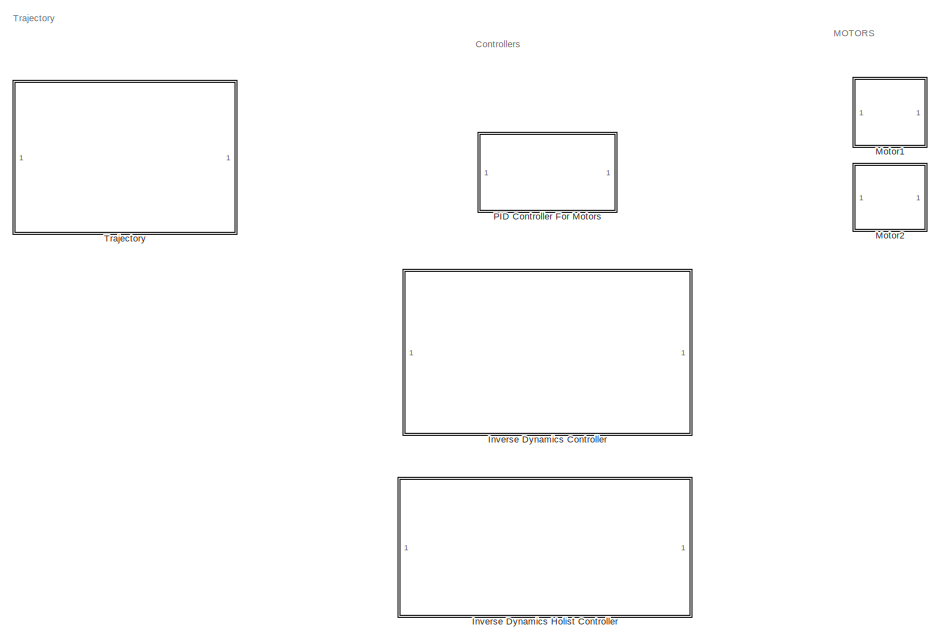
[diagram: root canvas - part 1/2, left side, full height]
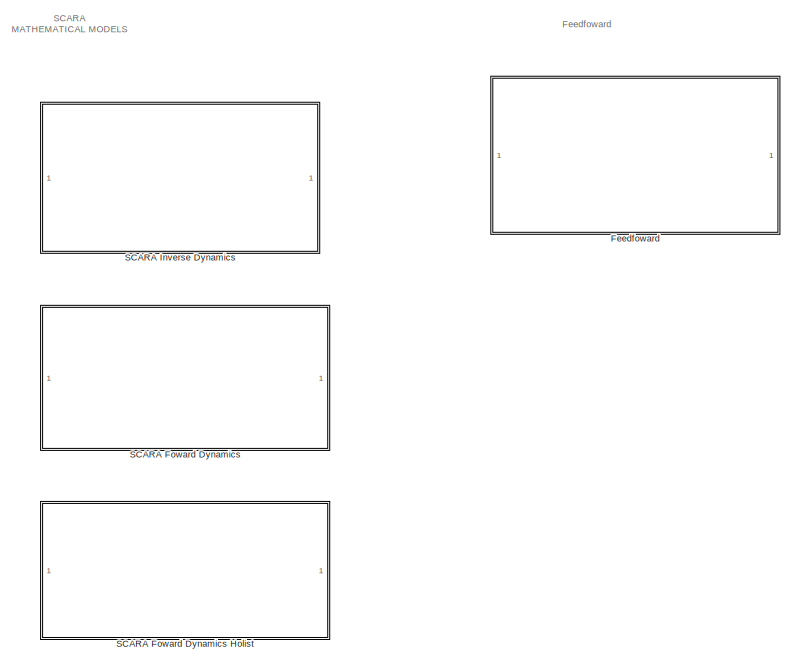
[diagram: root canvas - part 2/2, right side, full height]
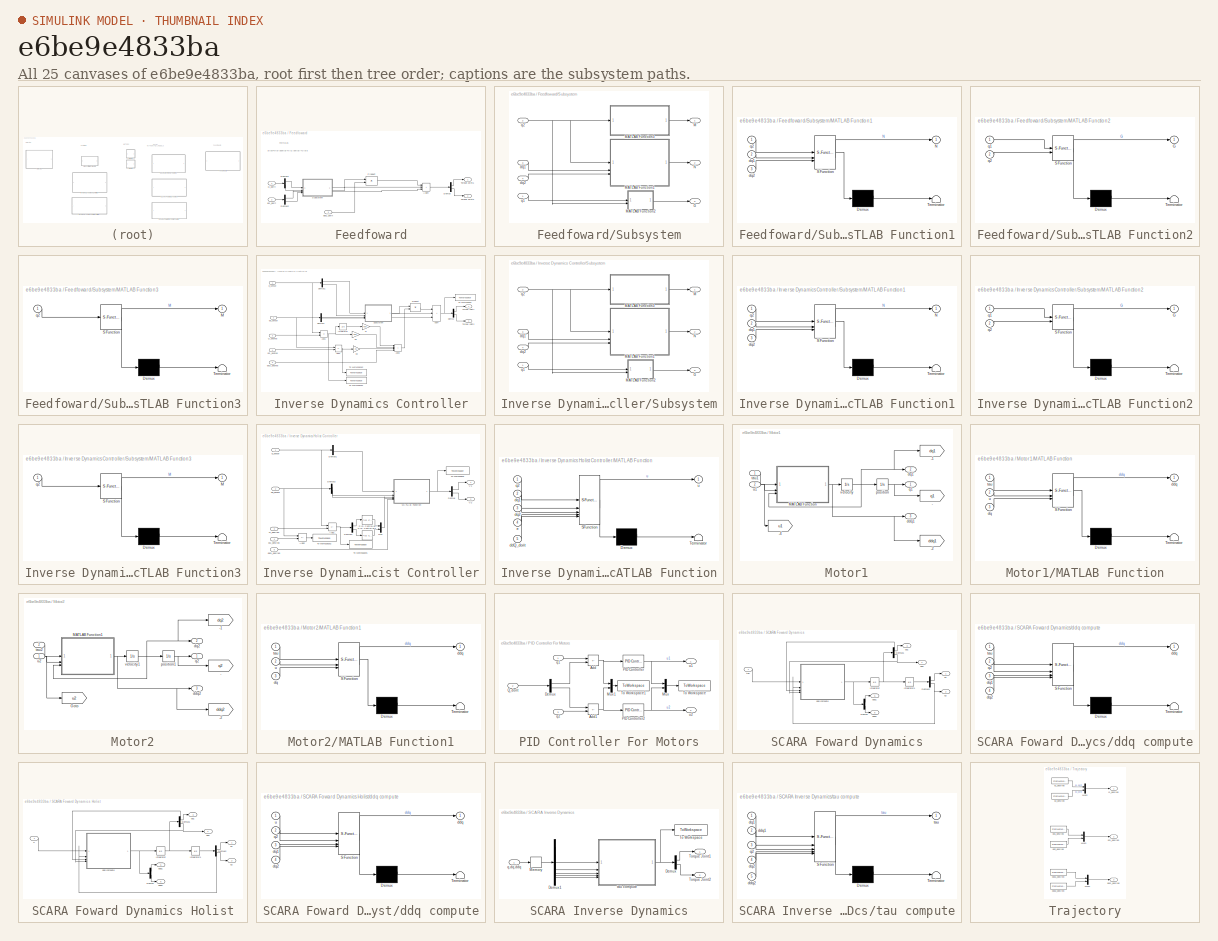
[diagram: thumbnail index - all 25 canvases of the model, root first then tree order]
MODEL slx_e6be9e4833ba
KIND library
CONFIG AbsTol = auto
CONFIG EnableMultiTasking = off
CONFIG FixedStep = auto
CONFIG MaxStep = auto
CONFIG MinStep = auto
CONFIG RelTol = 1e-3
CONFIG SampleTimeConstraint = Unconstrained
CONFIG SolverName = VariableStepAuto
CONFIG StartTime = 0.0
CONFIG StopTime = 10.0
BLOCK [SubSystem] Feedfoward
BLOCK [Sum] Feedfoward/Add4
  IconShape = rectangular
  Inputs = +++
BLOCK [Demux] Feedfoward/Demux
  Outputs = 2
BLOCK [Demux] Feedfoward/Demux1
  Outputs = 2
BLOCK [Demux] Feedfoward/Demux2
  Outputs = 2
BLOCK [Product] Feedfoward/Product
  Multiplication = Matrix(*)
BLOCK [Inport] Feedfoward/Q_dorit
BLOCK [SubSystem] Feedfoward/Subsystem
BLOCK [Outport] Feedfoward/Subsystem/G
  Port = 3
BLOCK [Outport] Feedfoward/Subsystem/M
BLOCK [SubSystem] Feedfoward/Subsystem/MATLAB Function1
  ErrorFcn = Stateflow.Translate.translate
  PermitHierarchicalResolution = ExplicitOnly
  SFBlockType = MATLAB Function
  TreatAsAtomicUnit = on
BLOCK [Demux] Feedfoward/Subsystem/MATLAB Function1/ Demux 
  Outputs = 1
BLOCK [S-Function] Feedfoward/Subsystem/MATLAB Function1/ SFunction 
  EnableBusSupport = off
  FunctionName = sf_sfun
  PortCounts = [3 2]
  SFcnIsStateOwnerBlock = off
  SFunctionDeploymentMode = off
  Tag = Stateflow S-Function 1
BLOCK [Terminator] Feedfoward/Subsystem/MATLAB Function1/ Terminator 
BLOCK [Outport] Feedfoward/Subsystem/MATLAB Function1/N
BLOCK [Inport] Feedfoward/Subsystem/MATLAB Function1/dq1
  Port = 2
BLOCK [Inport] Feedfoward/Subsystem/MATLAB Function1/dq2
  Port = 3
BLOCK [Inport] Feedfoward/Subsystem/MATLAB Function1/q2
BLOCK [SubSystem] Feedfoward/Subsystem/MATLAB Function2
  ErrorFcn = Stateflow.Translate.translate
  PermitHierarchicalResolution = ExplicitOnly
  SFBlockType = MATLAB Function
  TreatAsAtomicUnit = on
BLOCK [Demux] Feedfoward/Subsystem/MATLAB Function2/ Demux 
  Outputs = 1
BLOCK [S-Function] Feedfoward/Subsystem/MATLAB Function2/ SFunction 
  EnableBusSupport = off
  FunctionName = sf_sfun
  PortCounts = [2 2]
  SFcnIsStateOwnerBlock = off
  SFunctionDeploymentMode = off
  Tag = Stateflow S-Function 2
BLOCK [Terminator] Feedfoward/Subsystem/MATLAB Function2/ Terminator 
BLOCK [Outport] Feedfoward/Subsystem/MATLAB Function2/G
BLOCK [Inport] Feedfoward/Subsystem/MATLAB Function2/q1
BLOCK [Inport] Feedfoward/Subsystem/MATLAB Function2/q2
  Port = 2
BLOCK [SubSystem] Feedfoward/Subsystem/MATLAB Function3
  ErrorFcn = Stateflow.Translate.translate
  PermitHierarchicalResolution = ExplicitOnly
  SFBlockType = MATLAB Function
  TreatAsAtomicUnit = on
BLOCK [Demux] Feedfoward/Subsystem/MATLAB Function3/ Demux 
  Outputs = 1
BLOCK [S-Function] Feedfoward/Subsystem/MATLAB Function3/ SFunction 
  EnableBusSupport = off
  FunctionName = sf_sfun
  PortCounts = [1 2]
  SFcnIsStateOwnerBlock = off
  SFunctionDeploymentMode = off
  Tag = Stateflow S-Function 6
BLOCK [Terminator] Feedfoward/Subsystem/MATLAB Function3/ Terminator 
BLOCK [Outport] Feedfoward/Subsystem/MATLAB Function3/M
BLOCK [Inport] Feedfoward/Subsystem/MATLAB Function3/q2
BLOCK [Outport] Feedfoward/Subsystem/N
  Port = 2
BLOCK [Inport] Feedfoward/Subsystem/dq1
  Port = 3
BLOCK [Inport] Feedfoward/Subsystem/dq2
  Port = 4
BLOCK [Inport] Feedfoward/Subsystem/q1
BLOCK [Inport] Feedfoward/Subsystem/q2
  Port = 2
BLOCK [Outport] Feedfoward/Torque Joint1
BLOCK [Outport] Feedfoward/Torque Joint2
  Port = 2
BLOCK [Inport] Feedfoward/dQ_dorit
  Port = 2
BLOCK [Inport] Feedfoward/ddQ_dorit
  Port = 3
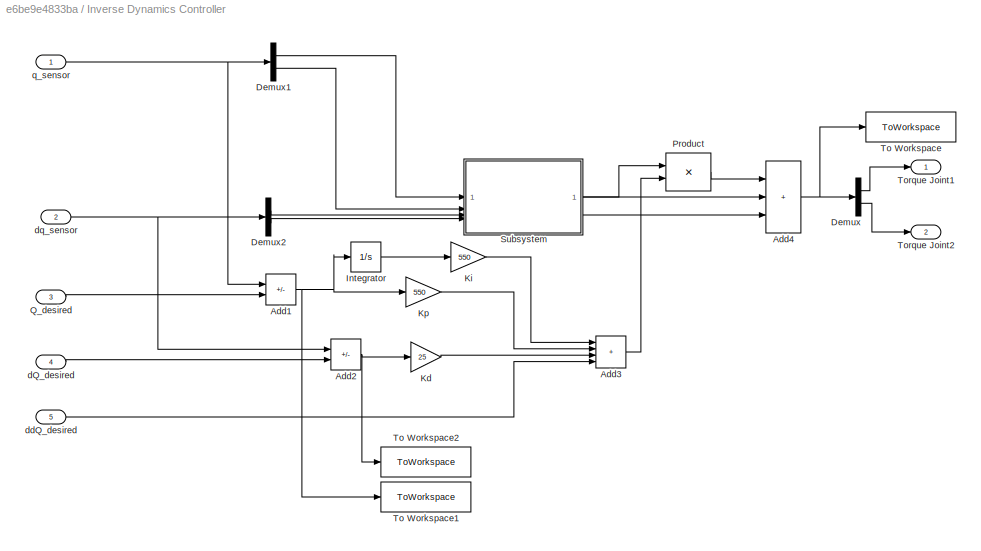
BLOCK [SubSystem] Inverse Dynamics Controller
BLOCK [Sum] Inverse Dynamics Controller/Add1
  IconShape = rectangular
  Inputs = -+
BLOCK [Sum] Inverse Dynamics Controller/Add2
  IconShape = rectangular
  Inputs = -+
BLOCK [Sum] Inverse Dynamics Controller/Add3
  IconShape = rectangular
  Inputs = ++++
BLOCK [Sum] Inverse Dynamics Controller/Add4
  IconShape = rectangular
  Inputs = +++
BLOCK [Demux] Inverse Dynamics Controller/Demux
  Outputs = 2
BLOCK [Demux] Inverse Dynamics Controller/Demux1
  Outputs = 2
BLOCK [Demux] Inverse Dynamics Controller/Demux2
  Outputs = 2
BLOCK [Integrator] Inverse Dynamics Controller/Integrator
BLOCK [Gain] Inverse Dynamics Controller/Kd
  Gain = 25
BLOCK [Gain] Inverse Dynamics Controller/Ki
  Gain = 550
BLOCK [Gain] Inverse Dynamics Controller/Kp
  Gain = 550
BLOCK [Product] Inverse Dynamics Controller/Product
  Multiplication = Matrix(*)
BLOCK [Inport] Inverse Dynamics Controller/Q_desired
  Port = 3
BLOCK [SubSystem] Inverse Dynamics Controller/Subsystem
BLOCK [Outport] Inverse Dynamics Controller/Subsystem/G
  Port = 3
BLOCK [Outport] Inverse Dynamics Controller/Subsystem/M
BLOCK [SubSystem] Inverse Dynamics Controller/Subsystem/MATLAB Function1
  ErrorFcn = Stateflow.Translate.translate
  PermitHierarchicalResolution = ExplicitOnly
  SFBlockType = MATLAB Function
  TreatAsAtomicUnit = on
BLOCK [Demux] Inverse Dynamics Controller/Subsystem/MATLAB Function1/ Demux 
  Outputs = 1
BLOCK [S-Function] Inverse Dynamics Controller/Subsystem/MATLAB Function1/ SFunction 
  EnableBusSupport = off
  FunctionName = sf_sfun
  PortCounts = [3 2]
  SFcnIsStateOwnerBlock = off
  SFunctionDeploymentMode = off
  Tag = Stateflow S-Function 3
BLOCK [Terminator] Inverse Dynamics Controller/Subsystem/MATLAB Function1/ Terminator 
BLOCK [Outport] Inverse Dynamics Controller/Subsystem/MATLAB Function1/N
BLOCK [Inport] Inverse Dynamics Controller/Subsystem/MATLAB Function1/dq1
  Port = 2
BLOCK [Inport] Inverse Dynamics Controller/Subsystem/MATLAB Function1/dq2
  Port = 3
BLOCK [Inport] Inverse Dynamics Controller/Subsystem/MATLAB Function1/q2
BLOCK [SubSystem] Inverse Dynamics Controller/Subsystem/MATLAB Function2
  ErrorFcn = Stateflow.Translate.translate
  PermitHierarchicalResolution = ExplicitOnly
  SFBlockType = MATLAB Function
  TreatAsAtomicUnit = on
BLOCK [Demux] Inverse Dynamics Controller/Subsystem/MATLAB Function2/ Demux 
  Outputs = 1
BLOCK [S-Function] Inverse Dynamics Controller/Subsystem/MATLAB Function2/ SFunction 
  EnableBusSupport = off
  FunctionName = sf_sfun
  PortCounts = [2 2]
  SFcnIsStateOwnerBlock = off
  SFunctionDeploymentMode = off
  Tag = Stateflow S-Function 4
BLOCK [Terminator] Inverse Dynamics Controller/Subsystem/MATLAB Function2/ Terminator 
BLOCK [Outport] Inverse Dynamics Controller/Subsystem/MATLAB Function2/G
BLOCK [Inport] Inverse Dynamics Controller/Subsystem/MATLAB Function2/q1
BLOCK [Inport] Inverse Dynamics Controller/Subsystem/MATLAB Function2/q2
  Port = 2
BLOCK [SubSystem] Inverse Dynamics Controller/Subsystem/MATLAB Function3
  ErrorFcn = Stateflow.Translate.translate
  PermitHierarchicalResolution = ExplicitOnly
  SFBlockType = MATLAB Function
  TreatAsAtomicUnit = on
BLOCK [Demux] Inverse Dynamics Controller/Subsystem/MATLAB Function3/ Demux 
  Outputs = 1
BLOCK [S-Function] Inverse Dynamics Controller/Subsystem/MATLAB Function3/ SFunction 
  EnableBusSupport = off
  FunctionName = sf_sfun
  PortCounts = [1 2]
  SFcnIsStateOwnerBlock = off
  SFunctionDeploymentMode = off
  Tag = Stateflow S-Function 5
BLOCK [Terminator] Inverse Dynamics Controller/Subsystem/MATLAB Function3/ Terminator 
BLOCK [Outport] Inverse Dynamics Controller/Subsystem/MATLAB Function3/M
BLOCK [Inport] Inverse Dynamics Controller/Subsystem/MATLAB Function3/q2
BLOCK [Outport] Inverse Dynamics Controller/Subsystem/N
  Port = 2
BLOCK [Inport] Inverse Dynamics Controller/Subsystem/dq1
  Port = 3
BLOCK [Inport] Inverse Dynamics Controller/Subsystem/dq2
  Port = 4
BLOCK [Inport] Inverse Dynamics Controller/Subsystem/q1
BLOCK [Inport] Inverse Dynamics Controller/Subsystem/q2
  Port = 2
BLOCK [ToWorkspace] Inverse Dynamics Controller/To Workspace
  FixptAsFi = on
  MaxDataPoints = inf
  SampleTime = -1
  SaveFormat = Timeseries
  VariableName = torque
BLOCK [ToWorkspace] Inverse Dynamics Controller/To Workspace1
  FixptAsFi = on
  MaxDataPoints = inf
  SampleTime = -1
  SaveFormat = Timeseries
  VariableName = errors_Q
BLOCK [ToWorkspace] Inverse Dynamics Controller/To Workspace2
  FixptAsFi = on
  MaxDataPoints = inf
  SampleTime = -1
  SaveFormat = Timeseries
  VariableName = errors_dQ
BLOCK [Outport] Inverse Dynamics Controller/Torque Joint1
BLOCK [Outport] Inverse Dynamics Controller/Torque Joint2
  Port = 2
BLOCK [Inport] Inverse Dynamics Controller/dQ_desired
  Port = 4
BLOCK [Inport] Inverse Dynamics Controller/ddQ_desired
  Port = 5
BLOCK [Inport] Inverse Dynamics Controller/dq_sensor
  Port = 2
BLOCK [Inport] Inverse Dynamics Controller/q_sensor
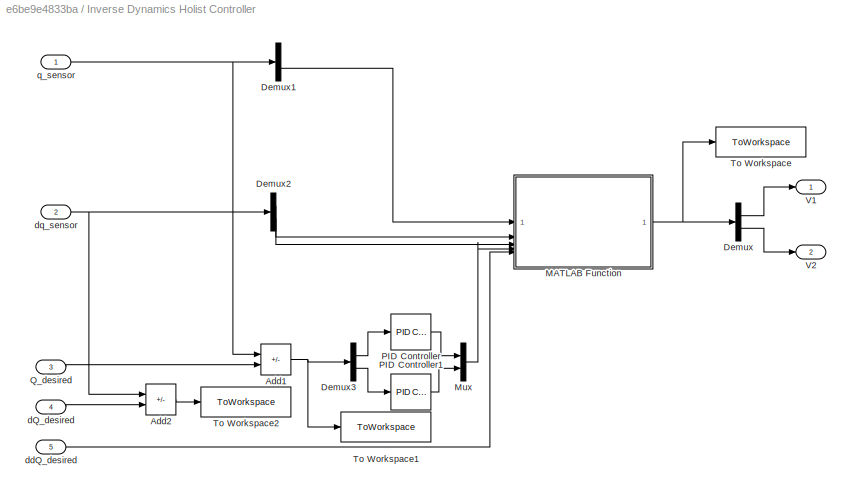
BLOCK [SubSystem] Inverse Dynamics Holist Controller
BLOCK [Sum] Inverse Dynamics Holist Controller/Add1
  IconShape = rectangular
  Inputs = -+
BLOCK [Sum] Inverse Dynamics Holist Controller/Add2
  IconShape = rectangular
  Inputs = -+
BLOCK [Demux] Inverse Dynamics Holist Controller/Demux
  Outputs = 2
BLOCK [Demux] Inverse Dynamics Holist Controller/Demux1
  Outputs = 2
BLOCK [Demux] Inverse Dynamics Holist Controller/Demux2
  Outputs = 2
BLOCK [Demux] Inverse Dynamics Holist Controller/Demux3
  Outputs = 2
BLOCK [SubSystem] Inverse Dynamics Holist Controller/MATLAB Function
  ErrorFcn = Stateflow.Translate.translate
  PermitHierarchicalResolution = ExplicitOnly
  SFBlockType = MATLAB Function
  TreatAsAtomicUnit = on
BLOCK [Demux] Inverse Dynamics Holist Controller/MATLAB Function/ Demux 
  Outputs = 1
BLOCK [S-Function] Inverse Dynamics Holist Controller/MATLAB Function/ SFunction 
  EnableBusSupport = off
  FunctionName = sf_sfun
  PortCounts = [5 2]
  SFcnIsStateOwnerBlock = off
  SFunctionDeploymentMode = off
  Tag = Stateflow S-Function 14
BLOCK [Terminator] Inverse Dynamics Holist Controller/MATLAB Function/ Terminator 
BLOCK [Inport] Inverse Dynamics Holist Controller/MATLAB Function/ddQ_dorit
  Port = 5
BLOCK [Inport] Inverse Dynamics Holist Controller/MATLAB Function/dq1
  Port = 2
BLOCK [Inport] Inverse Dynamics Holist Controller/MATLAB Function/dq2
  Port = 3
BLOCK [Inport] Inverse Dynamics Holist Controller/MATLAB Function/e
  Port = 4
BLOCK [Inport] Inverse Dynamics Holist Controller/MATLAB Function/q2
BLOCK [Outport] Inverse Dynamics Holist Controller/MATLAB Function/u
BLOCK [Mux] Inverse Dynamics Holist Controller/Mux
  DisplayOption = bar
  Inputs = 2
BLOCK [Reference] Inverse Dynamics Holist Controller/PID Controller  REF=slpidlib/PID Controller
  SourceBlock = slpidlib/PID Controller
  SourceType = PID 1dof
BLOCK [Reference] Inverse Dynamics Holist Controller/PID Controller1  REF=slpidlib/PID Controller
  SourceBlock = slpidlib/PID Controller
  SourceType = PID 1dof
BLOCK [Inport] Inverse Dynamics Holist Controller/Q_desired
  Port = 3
BLOCK [ToWorkspace] Inverse Dynamics Holist Controller/To Workspace
  FixptAsFi = on
  MaxDataPoints = inf
  SampleTime = -1
  SaveFormat = Timeseries
  VariableName = voltage
BLOCK [ToWorkspace] Inverse Dynamics Holist Controller/To Workspace1
  FixptAsFi = on
  MaxDataPoints = inf
  SampleTime = -1
  SaveFormat = Timeseries
  VariableName = errors_Q
BLOCK [ToWorkspace] Inverse Dynamics Holist Controller/To Workspace2
  FixptAsFi = on
  MaxDataPoints = inf
  SampleTime = -1
  SaveFormat = Timeseries
  VariableName = errors_dQ
BLOCK [Outport] Inverse Dynamics Holist Controller/V1
BLOCK [Outport] Inverse Dynamics Holist Controller/V2
  Port = 2
BLOCK [Inport] Inverse Dynamics Holist Controller/dQ_desired
  Port = 4
BLOCK [Inport] Inverse Dynamics Holist Controller/ddQ_desired
  Port = 5
BLOCK [Inport] Inverse Dynamics Holist Controller/dq_sensor
  Port = 2
BLOCK [Inport] Inverse Dynamics Holist Controller/q_sensor
BLOCK [SubSystem] Motor1
  NameLocation = top
BLOCK [Goto] Motor1/-
  GotoTag = q1
  TagVisibility = global
BLOCK [Goto] Motor1/-1
  GotoTag = dq1
  TagVisibility = global
BLOCK [Goto] Motor1/-2
  GotoTag = ddq1
  TagVisibility = global
BLOCK [Goto] Motor1/-4
  GotoTag = u1
  TagVisibility = global
BLOCK [SubSystem] Motor1/MATLAB Function
  ErrorFcn = Stateflow.Translate.translate
  PermitHierarchicalResolution = ExplicitOnly
  SFBlockType = MATLAB Function
  TreatAsAtomicUnit = on
BLOCK [Demux] Motor1/MATLAB Function/ Demux 
  Outputs = 1
BLOCK [S-Function] Motor1/MATLAB Function/ SFunction 
  EnableBusSupport = off
  FunctionName = sf_sfun
  PortCounts = [3 2]
  SFcnIsStateOwnerBlock = off
  SFunctionDeploymentMode = off
  Tag = Stateflow S-Function 11
BLOCK [Terminator] Motor1/MATLAB Function/ Terminator 
BLOCK [Outport] Motor1/MATLAB Function/ddq
BLOCK [Inport] Motor1/MATLAB Function/dq
  Port = 3
BLOCK [Inport] Motor1/MATLAB Function/tau
BLOCK [Inport] Motor1/MATLAB Function/u
  Port = 2
BLOCK [Outport] Motor1/ddq1
  Port = 3
BLOCK [Outport] Motor1/dq1
  Port = 2
BLOCK [Integrator] Motor1/position
BLOCK [Outport] Motor1/q1
BLOCK [Inport] Motor1/tau1
BLOCK [Inport] Motor1/u1
  Port = 2
BLOCK [Integrator] Motor1/velocity
BLOCK [SubSystem] Motor2
BLOCK [Goto] Motor2/-
  GotoTag = q2
  TagVisibility = global
BLOCK [Goto] Motor2/-1
  GotoTag = dq2
  TagVisibility = global
BLOCK [Goto] Motor2/-2
  GotoTag = ddq2
  TagVisibility = global
BLOCK [Goto] Motor2/Goto
  GotoTag = u2
BLOCK [SubSystem] Motor2/MATLAB Function1
  ErrorFcn = Stateflow.Translate.translate
  PermitHierarchicalResolution = ExplicitOnly
  SFBlockType = MATLAB Function
  TreatAsAtomicUnit = on
BLOCK [Demux] Motor2/MATLAB Function1/ Demux 
  Outputs = 1
BLOCK [S-Function] Motor2/MATLAB Function1/ SFunction 
  EnableBusSupport = off
  FunctionName = sf_sfun
  PortCounts = [3 2]
  SFcnIsStateOwnerBlock = off
  SFunctionDeploymentMode = off
  Tag = Stateflow S-Function 12
BLOCK [Terminator] Motor2/MATLAB Function1/ Terminator 
BLOCK [Outport] Motor2/MATLAB Function1/ddq
BLOCK [Inport] Motor2/MATLAB Function1/dq
  Port = 3
BLOCK [Inport] Motor2/MATLAB Function1/tau
BLOCK [Inport] Motor2/MATLAB Function1/u
  Port = 2
BLOCK [Outport] Motor2/ddq2
  Port = 3
BLOCK [Outport] Motor2/dq2
  Port = 2
BLOCK [Integrator] Motor2/position1
BLOCK [Outport] Motor2/q2
BLOCK [Inport] Motor2/tau2
  Port = 2
BLOCK [Inport] Motor2/u2
BLOCK [Integrator] Motor2/velocity1
BLOCK [SubSystem] PID Controller For Motors
BLOCK [Sum] PID Controller For Motors/Add
  IconShape = rectangular
  Inputs = -+
BLOCK [Sum] PID Controller For Motors/Add1
  IconShape = rectangular
  Inputs = +-
BLOCK [Demux] PID Controller For Motors/Demux
  Outputs = 2
BLOCK [Mux] PID Controller For Motors/Mux
  DisplayOption = bar
  Inputs = 2
BLOCK [Mux] PID Controller For Motors/Mux1
  DisplayOption = bar
  Inputs = 2
BLOCK [Reference] PID Controller For Motors/PID Controller  REF=slpidlib/PID Controller
  SourceBlock = slpidlib/PID Controller
  SourceType = PID 1dof
BLOCK [Reference] PID Controller For Motors/PID Controller2  REF=slpidlib/PID Controller
  SourceBlock = slpidlib/PID Controller
  SourceType = PID 1dof
BLOCK [Inport] PID Controller For Motors/Q_dorit
  Port = 2
BLOCK [ToWorkspace] PID Controller For Motors/To Workspace
  FixptAsFi = on
  MaxDataPoints = inf
  SampleTime = -1
  SaveFormat = Timeseries
  VariableName = voltage
BLOCK [ToWorkspace] PID Controller For Motors/To Workspace1
  FixptAsFi = on
  MaxDataPoints = inf
  SampleTime = -1
  SaveFormat = Timeseries
  VariableName = errors_Q
BLOCK [Inport] PID Controller For Motors/q1
BLOCK [Inport] PID Controller For Motors/q2
  Port = 3
BLOCK [Outport] PID Controller For Motors/u1
BLOCK [Outport] PID Controller For Motors/u2
  Port = 2
BLOCK [SubSystem] SCARA Foward Dynamics
BLOCK [SubSystem] SCARA Foward Dynamics Holist
BLOCK [Demux] SCARA Foward Dynamics Holist/Demux
  Outputs = 2
BLOCK [Demux] SCARA Foward Dynamics Holist/Demux1
  Outputs = 2
BLOCK [Demux] SCARA Foward Dynamics Holist/Demux2
  Outputs = 2
BLOCK [Integrator] SCARA Foward Dynamics Holist/Integrator
BLOCK [Integrator] SCARA Foward Dynamics Holist/Integrator1
BLOCK [SubSystem] SCARA Foward Dynamics Holist/ddq compute
  ErrorFcn = Stateflow.Translate.translate
  PermitHierarchicalResolution = ExplicitOnly
  SFBlockType = MATLAB Function
  TreatAsAtomicUnit = on
BLOCK [Demux] SCARA Foward Dynamics Holist/ddq compute/ Demux 
  Outputs = 1
BLOCK [S-Function] SCARA Foward Dynamics Holist/ddq compute/ SFunction 
  EnableBusSupport = off
  FunctionName = sf_sfun
  PortCounts = [4 2]
  SFcnIsStateOwnerBlock = off
  SFunctionDeploymentMode = off
  Tag = Stateflow S-Function 15
BLOCK [Terminator] SCARA Foward Dynamics Holist/ddq compute/ Terminator 
BLOCK [Outport] SCARA Foward Dynamics Holist/ddq compute/ddq
BLOCK [Inport] SCARA Foward Dynamics Holist/ddq compute/dq1
  Port = 3
BLOCK [Inport] SCARA Foward Dynamics Holist/ddq compute/dq2
  Port = 4
BLOCK [Inport] SCARA Foward Dynamics Holist/ddq compute/q2
  Port = 2
BLOCK [Inport] SCARA Foward Dynamics Holist/ddq compute/u
BLOCK [Outport] SCARA Foward Dynamics Holist/ddq1
  Port = 5
BLOCK [Outport] SCARA Foward Dynamics Holist/ddq2
  Port = 6
BLOCK [Outport] SCARA Foward Dynamics Holist/dq1
  Port = 3
BLOCK [Outport] SCARA Foward Dynamics Holist/dq2
  Port = 4
BLOCK [Outport] SCARA Foward Dynamics Holist/q1
BLOCK [Outport] SCARA Foward Dynamics Holist/q2
  Port = 2
BLOCK [Inport] SCARA Foward Dynamics Holist/u
BLOCK [Demux] SCARA Foward Dynamics/Demux
  Outputs = 2
BLOCK [Demux] SCARA Foward Dynamics/Demux1
  Outputs = 2
BLOCK [Demux] SCARA Foward Dynamics/Demux2
  Outputs = 2
BLOCK [Integrator] SCARA Foward Dynamics/Integrator
BLOCK [Integrator] SCARA Foward Dynamics/Integrator1
BLOCK [SubSystem] SCARA Foward Dynamics/ddq compute
  ErrorFcn = Stateflow.Translate.translate
  PermitHierarchicalResolution = ExplicitOnly
  SFBlockType = MATLAB Function
  TreatAsAtomicUnit = on
BLOCK [Demux] SCARA Foward Dynamics/ddq compute/ Demux 
  Outputs = 1
BLOCK [S-Function] SCARA Foward Dynamics/ddq compute/ SFunction 
  EnableBusSupport = off
  FunctionName = sf_sfun
  PortCounts = [4 2]
  SFcnIsStateOwnerBlock = off
  SFunctionDeploymentMode = off
  Tag = Stateflow S-Function 10
BLOCK [Terminator] SCARA Foward Dynamics/ddq compute/ Terminator 
BLOCK [Outport] SCARA Foward Dynamics/ddq compute/ddq
BLOCK [Inport] SCARA Foward Dynamics/ddq compute/dq1
  Port = 3
BLOCK [Inport] SCARA Foward Dynamics/ddq compute/dq2
  Port = 4
BLOCK [Inport] SCARA Foward Dynamics/ddq compute/q2
  Port = 2
BLOCK [Inport] SCARA Foward Dynamics/ddq compute/tau
BLOCK [Outport] SCARA Foward Dynamics/ddq1
  Port = 5
BLOCK [Outport] SCARA Foward Dynamics/ddq2
  Port = 6
BLOCK [Outport] SCARA Foward Dynamics/dq1
  Port = 3
BLOCK [Outport] SCARA Foward Dynamics/dq2
  Port = 4
BLOCK [Outport] SCARA Foward Dynamics/q1
BLOCK [Outport] SCARA Foward Dynamics/q2
  Port = 2
BLOCK [Inport] SCARA Foward Dynamics/tau
BLOCK [SubSystem] SCARA Inverse Dynamics
BLOCK [Demux] SCARA Inverse Dynamics/Demux
  Outputs = 2
BLOCK [Demux] SCARA Inverse Dynamics/Demux1
  Outputs = 5
BLOCK [Memory] SCARA Inverse Dynamics/Memory
BLOCK [ToWorkspace] SCARA Inverse Dynamics/To Workspace
  FixptAsFi = on
  MaxDataPoints = inf
  SampleTime = -1
  SaveFormat = Timeseries
  VariableName = torque
BLOCK [Outport] SCARA Inverse Dynamics/Torque Joint1
BLOCK [Outport] SCARA Inverse Dynamics/Torque Joint2
  Port = 2
BLOCK [Inport] SCARA Inverse Dynamics/q,dq,ddq
BLOCK [SubSystem] SCARA Inverse Dynamics/tau compute
  ErrorFcn = Stateflow.Translate.translate
  PermitHierarchicalResolution = ExplicitOnly
  SFBlockType = MATLAB Function
  TreatAsAtomicUnit = on
BLOCK [Demux] SCARA Inverse Dynamics/tau compute/ Demux 
  Outputs = 1
BLOCK [S-Function] SCARA Inverse Dynamics/tau compute/ SFunction 
  EnableBusSupport = off
  FunctionName = sf_sfun
  PortCounts = [5 2]
  SFcnIsStateOwnerBlock = off
  SFunctionDeploymentMode = off
  Tag = Stateflow S-Function 9
BLOCK [Terminator] SCARA Inverse Dynamics/tau compute/ Terminator 
BLOCK [Inport] SCARA Inverse Dynamics/tau compute/ddq1
  Port = 2
BLOCK [Inport] SCARA Inverse Dynamics/tau compute/ddq2
  Port = 5
BLOCK [Inport] SCARA Inverse Dynamics/tau compute/dq1
BLOCK [Inport] SCARA Inverse Dynamics/tau compute/dq2
  Port = 4
BLOCK [Inport] SCARA Inverse Dynamics/tau compute/q2
  Port = 3
BLOCK [Outport] SCARA Inverse Dynamics/tau compute/tau
BLOCK [SubSystem] Trajectory
BLOCK [Mux] Trajectory/Mux2
  DisplayOption = bar
  Inputs = 2
BLOCK [Mux] Trajectory/Mux3
  DisplayOption = bar
  Inputs = 2
BLOCK [Mux] Trajectory/Mux4
  DisplayOption = bar
  Inputs = 2
BLOCK [Outport] Trajectory/Q_desired
BLOCK [Outport] Trajectory/dQ_desired
  Port = 2
BLOCK [Outport] Trajectory/ddQ_desired
  Port = 3
BLOCK [FromWorkspace] Trajectory/ddq1_desired
  VariableName = ddq1time
BLOCK [FromWorkspace] Trajectory/ddq2_desired
  VariableName = ddq2time
BLOCK [FromWorkspace] Trajectory/dq1_desired
  VariableName = dq1time
BLOCK [FromWorkspace] Trajectory/dq2_desired
  VariableName = dq2time
BLOCK [FromWorkspace] Trajectory/q1_desired
  VariableName = q1time
BLOCK [FromWorkspace] Trajectory/q2_desired
  VariableName = q2time
ANNOTATION (root): Feedfoward
ANNOTATION (root): SCARA MATHEMATICAL MODELS
ANNOTATION (root): Trajectory
ANNOTATION (root): Controllers
ANNOTATION (root): MOTORS
ANNOTATION Feedfoward: $\tau=M(q)\ddot{q}​+N(q,\dot{q})+G(q)$
ANNOTATION Feedfoward: Formulas
LINE Feedfoward/Add4:1 -> Feedfoward/Demux:1
LINE Feedfoward/Demux1:1 -> Feedfoward/Subsystem:1
LINE Feedfoward/Demux1:2 -> Feedfoward/Subsystem:2
LINE Feedfoward/Demux2:1 -> Feedfoward/Subsystem:3
LINE Feedfoward/Demux2:2 -> Feedfoward/Subsystem:4
LINE Feedfoward/Demux:1 -> Feedfoward/Torque Joint1:1
LINE Feedfoward/Demux:2 -> Feedfoward/Torque Joint2:1
LINE Feedfoward/Product:1 -> Feedfoward/Add4:1
LINE Feedfoward/Q_dorit:1 -> Feedfoward/Demux1:1
LINE Feedfoward/Subsystem/MATLAB Function1:1 -> Feedfoward/Subsystem/N:1
LINE Feedfoward/Subsystem/MATLAB Function2:1 -> Feedfoward/Subsystem/G:1
LINE Feedfoward/Subsystem/MATLAB Function3:1 -> Feedfoward/Subsystem/M:1
LINE Feedfoward/Subsystem/dq1:1 -> Feedfoward/Subsystem/MATLAB Function1:2
LINE Feedfoward/Subsystem/dq2:1 -> Feedfoward/Subsystem/MATLAB Function1:3
LINE Feedfoward/Subsystem/q1:1 -> Feedfoward/Subsystem/MATLAB Function2:1
NET Feedfoward/Subsystem/q2:1 -> Feedfoward/Subsystem/MATLAB Function1:1, Feedfoward/Subsystem/MATLAB Function2:2, Feedfoward/Subsystem/MATLAB Function3:1
LINE Feedfoward/Subsystem:1 -> Feedfoward/Product:1
LINE Feedfoward/Subsystem:2 -> Feedfoward/Add4:2
LINE Feedfoward/Subsystem:3 -> Feedfoward/Add4:3
LINE Feedfoward/dQ_dorit:1 -> Feedfoward/Demux2:1
LINE Feedfoward/ddQ_dorit:1 -> Feedfoward/Product:2
NET Inverse Dynamics Controller/Add1:1 -> Inverse Dynamics Controller/Integrator:1, Inverse Dynamics Controller/Kp:1, Inverse Dynamics Controller/To Workspace1:1
NET Inverse Dynamics Controller/Add2:1 -> Inverse Dynamics Controller/Kd:1, Inverse Dynamics Controller/To Workspace2:1
LINE Inverse Dynamics Controller/Add3:1 -> Inverse Dynamics Controller/Product:2
NET Inverse Dynamics Controller/Add4:1 -> Inverse Dynamics Controller/Demux:1, Inverse Dynamics Controller/To Workspace:1
LINE Inverse Dynamics Controller/Demux1:1 -> Inverse Dynamics Controller/Subsystem:1
LINE Inverse Dynamics Controller/Demux1:2 -> Inverse Dynamics Controller/Subsystem:2
LINE Inverse Dynamics Controller/Demux2:1 -> Inverse Dynamics Controller/Subsystem:3
LINE Inverse Dynamics Controller/Demux2:2 -> Inverse Dynamics Controller/Subsystem:4
LINE Inverse Dynamics Controller/Demux:1 -> Inverse Dynamics Controller/Torque Joint1:1
LINE Inverse Dynamics Controller/Demux:2 -> Inverse Dynamics Controller/Torque Joint2:1
LINE Inverse Dynamics Controller/Integrator:1 -> Inverse Dynamics Controller/Ki:1
LINE Inverse Dynamics Controller/Kd:1 -> Inverse Dynamics Controller/Add3:3
LINE Inverse Dynamics Controller/Ki:1 -> Inverse Dynamics Controller/Add3:1
LINE Inverse Dynamics Controller/Kp:1 -> Inverse Dynamics Controller/Add3:2
LINE Inverse Dynamics Controller/Product:1 -> Inverse Dynamics Controller/Add4:1
LINE Inverse Dynamics Controller/Q_desired:1 -> Inverse Dynamics Controller/Add1:2
LINE Inverse Dynamics Controller/Subsystem/MATLAB Function1:1 -> Inverse Dynamics Controller/Subsystem/N:1
LINE Inverse Dynamics Controller/Subsystem/MATLAB Function2:1 -> Inverse Dynamics Controller/Subsystem/G:1
LINE Inverse Dynamics Controller/Subsystem/MATLAB Function3:1 -> Inverse Dynamics Controller/Subsystem/M:1
LINE Inverse Dynamics Controller/Subsystem/dq1:1 -> Inverse Dynamics Controller/Subsystem/MATLAB Function1:2
LINE Inverse Dynamics Controller/Subsystem/dq2:1 -> Inverse Dynamics Controller/Subsystem/MATLAB Function1:3
LINE Inverse Dynamics Controller/Subsystem/q1:1 -> Inverse Dynamics Controller/Subsystem/MATLAB Function2:1
NET Inverse Dynamics Controller/Subsystem/q2:1 -> Inverse Dynamics Controller/Subsystem/MATLAB Function1:1, Inverse Dynamics Controller/Subsystem/MATLAB Function2:2, Inverse Dynamics Controller/Subsystem/MATLAB Function3:1
LINE Inverse Dynamics Controller/Subsystem:1 -> Inverse Dynamics Controller/Product:1
LINE Inverse Dynamics Controller/Subsystem:2 -> Inverse Dynamics Controller/Add4:2
LINE Inverse Dynamics Controller/Subsystem:3 -> Inverse Dynamics Controller/Add4:3
LINE Inverse Dynamics Controller/dQ_desired:1 -> Inverse Dynamics Controller/Add2:2
LINE Inverse Dynamics Controller/ddQ_desired:1 -> Inverse Dynamics Controller/Add3:4
NET Inverse Dynamics Controller/dq_sensor:1 -> Inverse Dynamics Controller/Add2:1, Inverse Dynamics Controller/Demux2:1
NET Inverse Dynamics Controller/q_sensor:1 -> Inverse Dynamics Controller/Add1:1, Inverse Dynamics Controller/Demux1:1
NET Inverse Dynamics Holist Controller/Add1:1 -> Inverse Dynamics Holist Controller/Demux3:1, Inverse Dynamics Holist Controller/To Workspace1:1
LINE Inverse Dynamics Holist Controller/Add2:1 -> Inverse Dynamics Holist Controller/To Workspace2:1
LINE Inverse Dynamics Holist Controller/Demux1:2 -> Inverse Dynamics Holist Controller/MATLAB Function:1
LINE Inverse Dynamics Holist Controller/Demux2:1 -> Inverse Dynamics Holist Controller/MATLAB Function:2
LINE Inverse Dynamics Holist Controller/Demux2:2 -> Inverse Dynamics Holist Controller/MATLAB Function:3
LINE Inverse Dynamics Holist Controller/Demux3:1 -> Inverse Dynamics Holist Controller/PID Controller:1
LINE Inverse Dynamics Holist Controller/Demux3:2 -> Inverse Dynamics Holist Controller/PID Controller1:1
LINE Inverse Dynamics Holist Controller/Demux:1 -> Inverse Dynamics Holist Controller/V1:1
LINE Inverse Dynamics Holist Controller/Demux:2 -> Inverse Dynamics Holist Controller/V2:1
NET Inverse Dynamics Holist Controller/MATLAB Function:1 -> Inverse Dynamics Holist Controller/Demux:1, Inverse Dynamics Holist Controller/To Workspace:1
LINE Inverse Dynamics Holist Controller/Mux:1 -> Inverse Dynamics Holist Controller/MATLAB Function:4
LINE Inverse Dynamics Holist Controller/PID Controller1:1 -> Inverse Dynamics Holist Controller/Mux:2
LINE Inverse Dynamics Holist Controller/PID Controller:1 -> Inverse Dynamics Holist Controller/Mux:1
LINE Inverse Dynamics Holist Controller/Q_desired:1 -> Inverse Dynamics Holist Controller/Add1:2
LINE Inverse Dynamics Holist Controller/dQ_desired:1 -> Inverse Dynamics Holist Controller/Add2:2
LINE Inverse Dynamics Holist Controller/ddQ_desired:1 -> Inverse Dynamics Holist Controller/MATLAB Function:5
NET Inverse Dynamics Holist Controller/dq_sensor:1 -> Inverse Dynamics Holist Controller/Add2:1, Inverse Dynamics Holist Controller/Demux2:1
NET Inverse Dynamics Holist Controller/q_sensor:1 -> Inverse Dynamics Holist Controller/Add1:1, Inverse Dynamics Holist Controller/Demux1:1
NET Motor1/MATLAB Function:1 -> Motor1/-2:1, Motor1/ddq1:1, Motor1/velocity:1
NET Motor1/position:1 -> Motor1/-:1, Motor1/q1:1
LINE Motor1/tau1:1 -> Motor1/MATLAB Function:1
NET Motor1/u1:1 -> Motor1/-4:1, Motor1/MATLAB Function:2
NET Motor1/velocity:1 -> Motor1/-1:1, Motor1/MATLAB Function:3, Motor1/dq1:1, Motor1/position:1
NET Motor2/MATLAB Function1:1 -> Motor2/-2:1, Motor2/ddq2:1, Motor2/velocity1:1
NET Motor2/position1:1 -> Motor2/-:1, Motor2/q2:1
LINE Motor2/tau2:1 -> Motor2/MATLAB Function1:1
NET Motor2/u2:1 -> Motor2/Goto:1, Motor2/MATLAB Function1:2
NET Motor2/velocity1:1 -> Motor2/-1:1, Motor2/MATLAB Function1:3, Motor2/dq2:1, Motor2/position1:1
NET PID Controller For Motors/Add1:1 -> PID Controller For Motors/Mux1:2, PID Controller For Motors/PID Controller2:1
NET PID Controller For Motors/Add:1 -> PID Controller For Motors/Mux1:1, PID Controller For Motors/PID Controller:1
LINE PID Controller For Motors/Demux:1 -> PID Controller For Motors/Add:2
LINE PID Controller For Motors/Demux:2 -> PID Controller For Motors/Add1:1
LINE PID Controller For Motors/Mux1:1 -> PID Controller For Motors/To Workspace1:1
LINE PID Controller For Motors/Mux:1 -> PID Controller For Motors/To Workspace:1
NET PID Controller For Motors/PID Controller2:1 -> PID Controller For Motors/Mux:2, PID Controller For Motors/u2:1
NET PID Controller For Motors/PID Controller:1 -> PID Controller For Motors/Mux:1, PID Controller For Motors/u1:1
LINE PID Controller For Motors/Q_dorit:1 -> PID Controller For Motors/Demux:1
LINE PID Controller For Motors/q1:1 -> PID Controller For Motors/Add:1
LINE PID Controller For Motors/q2:1 -> PID Controller For Motors/Add1:2
NET SCARA Foward Dynamics Holist/Demux1:1 -> SCARA Foward Dynamics Holist/ddq compute:3, SCARA Foward Dynamics Holist/dq1:1
NET SCARA Foward Dynamics Holist/Demux1:2 -> SCARA Foward Dynamics Holist/ddq compute:4, SCARA Foward Dynamics Holist/dq2:1
LINE SCARA Foward Dynamics Holist/Demux2:1 -> SCARA Foward Dynamics Holist/q1:1
NET SCARA Foward Dynamics Holist/Demux2:2 -> SCARA Foward Dynamics Holist/ddq compute:2, SCARA Foward Dynamics Holist/q2:1
LINE SCARA Foward Dynamics Holist/Demux:1 -> SCARA Foward Dynamics Holist/ddq1:1
LINE SCARA Foward Dynamics Holist/Demux:2 -> SCARA Foward Dynamics Holist/ddq2:1
LINE SCARA Foward Dynamics Holist/Integrator1:1 -> SCARA Foward Dynamics Holist/Demux2:1
NET SCARA Foward Dynamics Holist/Integrator:1 -> SCARA Foward Dynamics Holist/Demux1:1, SCARA Foward Dynamics Holist/Integrator1:1
NET SCARA Foward Dynamics Holist/ddq compute:1 -> SCARA Foward Dynamics Holist/Demux:1, SCARA Foward Dynamics Holist/Integrator:1
LINE SCARA Foward Dynamics Holist/u:1 -> SCARA Foward Dynamics Holist/ddq compute:1
NET SCARA Foward Dynamics/Demux1:1 -> SCARA Foward Dynamics/ddq compute:3, SCARA Foward Dynamics/dq1:1
NET SCARA Foward Dynamics/Demux1:2 -> SCARA Foward Dynamics/ddq compute:4, SCARA Foward Dynamics/dq2:1
LINE SCARA Foward Dynamics/Demux2:1 -> SCARA Foward Dynamics/q1:1
NET SCARA Foward Dynamics/Demux2:2 -> SCARA Foward Dynamics/ddq compute:2, SCARA Foward Dynamics/q2:1
LINE SCARA Foward Dynamics/Demux:1 -> SCARA Foward Dynamics/ddq1:1
LINE SCARA Foward Dynamics/Demux:2 -> SCARA Foward Dynamics/ddq2:1
LINE SCARA Foward Dynamics/Integrator1:1 -> SCARA Foward Dynamics/Demux2:1
NET SCARA Foward Dynamics/Integrator:1 -> SCARA Foward Dynamics/Demux1:1, SCARA Foward Dynamics/Integrator1:1
NET SCARA Foward Dynamics/ddq compute:1 -> SCARA Foward Dynamics/Demux:1, SCARA Foward Dynamics/Integrator:1
LINE SCARA Foward Dynamics/tau:1 -> SCARA Foward Dynamics/ddq compute:1
LINE SCARA Inverse Dynamics/Demux1:1 -> SCARA Inverse Dynamics/tau compute:1
LINE SCARA Inverse Dynamics/Demux1:2 -> SCARA Inverse Dynamics/tau compute:2
LINE SCARA Inverse Dynamics/Demux1:3 -> SCARA Inverse Dynamics/tau compute:3
LINE SCARA Inverse Dynamics/Demux1:4 -> SCARA Inverse Dynamics/tau compute:4
LINE SCARA Inverse Dynamics/Demux1:5 -> SCARA Inverse Dynamics/tau compute:5
LINE SCARA Inverse Dynamics/Demux:1 -> SCARA Inverse Dynamics/Torque Joint1:1
LINE SCARA Inverse Dynamics/Demux:2 -> SCARA Inverse Dynamics/Torque Joint2:1
LINE SCARA Inverse Dynamics/Memory:1 -> SCARA Inverse Dynamics/Demux1:1
LINE SCARA Inverse Dynamics/q,dq,ddq:1 -> SCARA Inverse Dynamics/Memory:1
NET SCARA Inverse Dynamics/tau compute:1 -> SCARA Inverse Dynamics/Demux:1, SCARA Inverse Dynamics/To Workspace:1
LINE Trajectory/Mux2:1 -> Trajectory/Q_desired:1
LINE Trajectory/Mux3:1 -> Trajectory/dQ_desired:1
LINE Trajectory/Mux4:1 -> Trajectory/ddQ_desired:1
LINE Trajectory/ddq1_desired:1 -> Trajectory/Mux4:1
LINE Trajectory/ddq2_desired:1 -> Trajectory/Mux4:2
LINE Trajectory/dq1_desired:1 -> Trajectory/Mux3:1
LINE Trajectory/dq2_desired:1 -> Trajectory/Mux3:2
LINE Trajectory/q1_desired:1 -> Trajectory/Mux2:1
LINE Trajectory/q2_desired:1 -> Trajectory/Mux2:2
note: NET lines group one-source signal fan-out (src -> all destinations, sorted); 1:1 wires keep LINE
CHART Inverse Dynamics Holist Controller/MATLAB Function states=1 transitions=1
  STATE_LABEL 'eML_blk_kernel()'
  STATE_LABEL 'SCRIPT:\nfunction u = inverseDynamicsControl(q2, dq1, dq2, e, ddQ_dorit)\n    % parameters of SCARA\n    m1 = 1;      \n    m2 = 2;      \n    l1 = 0.2;\n    lc2 = 0.1;\n    lc1 = 0.1;\n    Izz1 = 3.68e-3;\n    Izz2 = 7.366e-3;\n\n    % parameters motor\n    J_t = 72.8e-6;\n    i_r = 103;\n    n = 1/1.74;\n    b = 0.1;\n    k_M = 27.3e-3;\n    R = 0.108;\n\n    factor1 = diag(1/(n*i_r^2));\n    factor2 = diag(b + k_M...<+661ch>'
CHART SCARA Foward Dynamics Holist/ddq compute states=1 transitions=1
  STATE_LABEL 'eML_blk_kernel()'
  STATE_LABEL 'SCRIPT:\nfunction ddq = foward_dynamics(u, q2, dq1, dq2)\n    % parameters SCARA\n    m1 = 1;      \n    m2 = 2;      \n    l1 = 0.2;\n    lc2 = 0.1;\n    lc1 = 0.1;\n    Izz1 = 3.68e-3;\n    Izz2 = 7.366e-3;\n    \n    % parameters motor+gearing\n    J_t = 72.8e-6;\n    i_r = 103;\n    n = 1/1.74;\n    b = 0.1;\n    k_M = 27.3e-3;\n    R = 0.108;\n\n\n    factor1 = diag(1/(n*i_r^2));\n    factor2 = diag(b + k_M^2/R);...<+691ch>'
CHART Feedfoward/Subsystem/MATLAB Function1 states=1 transitions=1
  STATE_LABEL 'eML_blk_kernel()'
  STATE_LABEL 'SCRIPT:\nfunction N = velocityProductTorque(q2, dq1, dq2)\n \n    m2 = 1.6;      \n    l1 = 0.18;\n    lc2 = 0.09;\n\n\n    % coriolis\n    B = [-2*l1*lc2*m2*sin(q2);\n         0];\n    velocity_vector = dq1*dq2;\n    \n    % centrifugal\n    Cn = [0, -l1*lc2*m2*sin(q2);\n          l1*lc2*m2*sin(q2), 0];\n    velocity_vector_squared = [dq1^2; dq2^2];\n    \n\n    N = Cn*velocity_vector_squared + B*velocity_vector;\ne...<+3ch>'
CHART Feedfoward/Subsystem/MATLAB Function2 states=1 transitions=1
  STATE_LABEL 'eML_blk_kernel()'
  STATE_LABEL 'SCRIPT:\nfunction G = gravity(q1, q2)\n\n    \n    m1 = 1.6;      \n    m2 = 1.6;        \n    l1 = 0.18;\n    lc1 = 0.09;\n    lc2 = 0.09;\n    g = 9.82;\n    \n    G = [0;0];\n\nend\n'
CHART Inverse Dynamics Controller/Subsystem/MATLAB Function1 states=1 transitions=1
  STATE_LABEL 'eML_blk_kernel()'
  STATE_LABEL 'SCRIPT:\nfunction N = velocityProductTorque(q2, dq1, dq2)\n \n    m2 = 1.6;      \n    l1 = 0.18;\n    lc2 = 0.09;\n\n    % coriolis\n    B = [-2*l1*lc2*m2*sin(q2);\n         0];\n    \n    % centrifugal\n    Cn = [0, -l1*lc2*m2*sin(q2);\n          l1*lc2*m2*sin(q2), 0]; \n\n    N = Cn*[dq1^2; dq2^2]; + B*[dq1*dq2];\nend\n'
CHART Inverse Dynamics Controller/Subsystem/MATLAB Function2 states=1 transitions=1
  STATE_LABEL 'eML_blk_kernel()'
  STATE_LABEL 'SCRIPT:\nfunction G = gravity(q1, q2)\n\n    \n    m1 = 1.6;      \n    m2 = 1.6;        \n    l1 = 0.18;\n    lc1 = 0.09;\n    lc2 = 0.09;\n    g = 9.82;\n    \n    G = [0;0];\n\nend\n'
CHART Inverse Dynamics Controller/Subsystem/MATLAB Function3 states=1 transitions=1
  STATE_LABEL 'eML_blk_kernel()'
  STATE_LABEL 'SCRIPT:\nfunction M = massInertia(q2)\n\n    m1 = 1.6;      \n    m2 = 1.6;      \n    l1 = 0.18;\n    lc2 = 0.09;\n    lc1 = 0.09;\n    Izz1 = 0.05;\n    Izz2 = 0.05;\n\n    M = [m2*l1^2 + 2*m2*cos(q2)*l1*lc2 + m1*lc1^2 + m2*lc2^2 + Izz1 + Izz2, m2*lc2^2 + l1*m2*cos(q2)*lc2 + Izz2; \n     m2*lc2^2 + l1*m2*cos(q2)*lc2 + Izz2, m2*lc2^2 + Izz2];\nend'
CHART Feedfoward/Subsystem/MATLAB Function3 states=1 transitions=1
  STATE_LABEL 'eML_blk_kernel()'
  STATE_LABEL 'SCRIPT:\nfunction M = massInertia(q2)\n\n    m1 = 1.6;      \n    m2 = 1.6;      \n    l1 = 0.18;\n    lc2 = 0.09;\n    lc1 = 0.09;\n    Izz1 = 0.05;\n    Izz2 = 0.05;\n\n    M = [m2*l1^2 + 2*m2*cos(q2)*l1*lc2 + m1*lc1^2 + m2*lc2^2 + Izz1 + Izz2, m2*lc2^2 + l1*m2*cos(q2)*lc2 + Izz2; \n     m2*lc2^2 + l1*m2*cos(q2)*lc2 + Izz2, m2*lc2^2 + Izz2];\nend'
CHART SCARA Inverse Dynamics/tau compute states=1 transitions=1
  STATE_LABEL 'eML_blk_kernel()'
  STATE_LABEL 'SCRIPT:\nfunction tau = tau_compute(dq1, ddq1, q2, dq2, ddq2)\n    \n    % parameters SCARA\n    m1 = 1;      \n    m2 = 2;      \n    l1 = 0.2;\n    lc2 = 0.1;\n    lc1 = 0.1;\n    Izz1 = 3.68e-3;\n    Izz2 = 7.366e-3;\n   \n    % mass inertia\n    M = [m2*l1^2 + 2*m2*cos(q2)*l1*lc2 + m1*lc1^2 + m2*lc2^2 + Izz1 + Izz2, m2*lc2^2 + l1*m2*cos(q2)*lc2 + Izz2; \n     m2*lc2^2 + l1*m2*cos(q2)*lc2 + Izz2, m2*lc2^2 + ...<+308ch>'
CHART SCARA Foward Dynamics/ddq compute states=1 transitions=1
  STATE_LABEL 'eML_blk_kernel()'
  STATE_LABEL 'SCRIPT:\nfunction ddq = foward_dynamics(tau, q2, dq1, dq2)\n    m1 = 1;      \n    m2 = 2;      \n    l1 = 0.2;\n    lc2 = 0.1;\n    lc1 = 0.1;\n    Izz1 = 3.68e-3;\n    Izz2 = 7.366e-3;\n\n    % mass inertia\n    M = [m2*l1^2 + 2*m2*cos(q2)*l1*lc2 + m1*lc1^2 + m2*lc2^2 + Izz1 + Izz2, m2*lc2^2 + l1*m2*cos(q2)*lc2 + Izz2; \n     m2*lc2^2 + l1*m2*cos(q2)*lc2 + Izz2, m2*lc2^2 + Izz2];\n\n     % coriolis\n    B = [-...<+215ch>'
CHART Motor1/MATLAB Function states=1 transitions=1
  STATE_LABEL 'eML_blk_kernel()'
  STATE_LABEL 'SCRIPT:\nfunction ddq = Motor(tau, u, dq)\n\n    % parameters of the motor + gearing\n    \n    b = 0.1; %[Nms/rad]\n    k_M = 27.3*10^-3; %[mNm/A]\n    randament = 1/1.74; \n    i_r = 103;\n    R = 0.200; %[ohm]\n    J_a = 72.8*10^-6; %[gcm^2]\n\n\n    factor1 = (b + k_M^2/R)*dq;\n    factor2 = tau/(randament*i_r^2);\n    factor3 = k_M / (i_r * R) * u;\n    ddq = 1/J_a * (factor3 - factor1 - factor2);\n'
CHART Motor2/MATLAB Function1 states=1 transitions=1
  STATE_LABEL 'eML_blk_kernel()'
  STATE_LABEL 'SCRIPT:\nfunction ddq = Motor(tau, u, dq)\n\n    % parameters of the motor+gearing\n    \n    b = 0.1; %[Nms/rad]\n    k_M = 27.3*10^-3; %[mNm/A]\n    randament = 1/1.74; \n    i_r = 103;\n    R = 0.200; %[ohm]\n    J_a = 72.8*10^-6; %[gcm^2]\n\n\n    factor1 = (b + k_M^2/R)*dq;\n    factor2 = tau/(randament*i_r^2);\n    factor3 = k_M / (i_r * R) * u;\n    ddq = 1/J_a * (factor3 - factor1 - factor2);\n'
CHART  states=0 transitions=0
CHART  states=0 transitions=0
CHART  states=0 transitions=0
CHART  states=0 transitions=0
CHART  states=0 transitions=0
CHART  states=0 transitions=0
CHART  states=0 transitions=0
CHART  states=0 transitions=0
CHART  states=0 transitions=0
CHART  states=0 transitions=0
CHART  states=0 transitions=0
CHART  states=0 transitions=0
